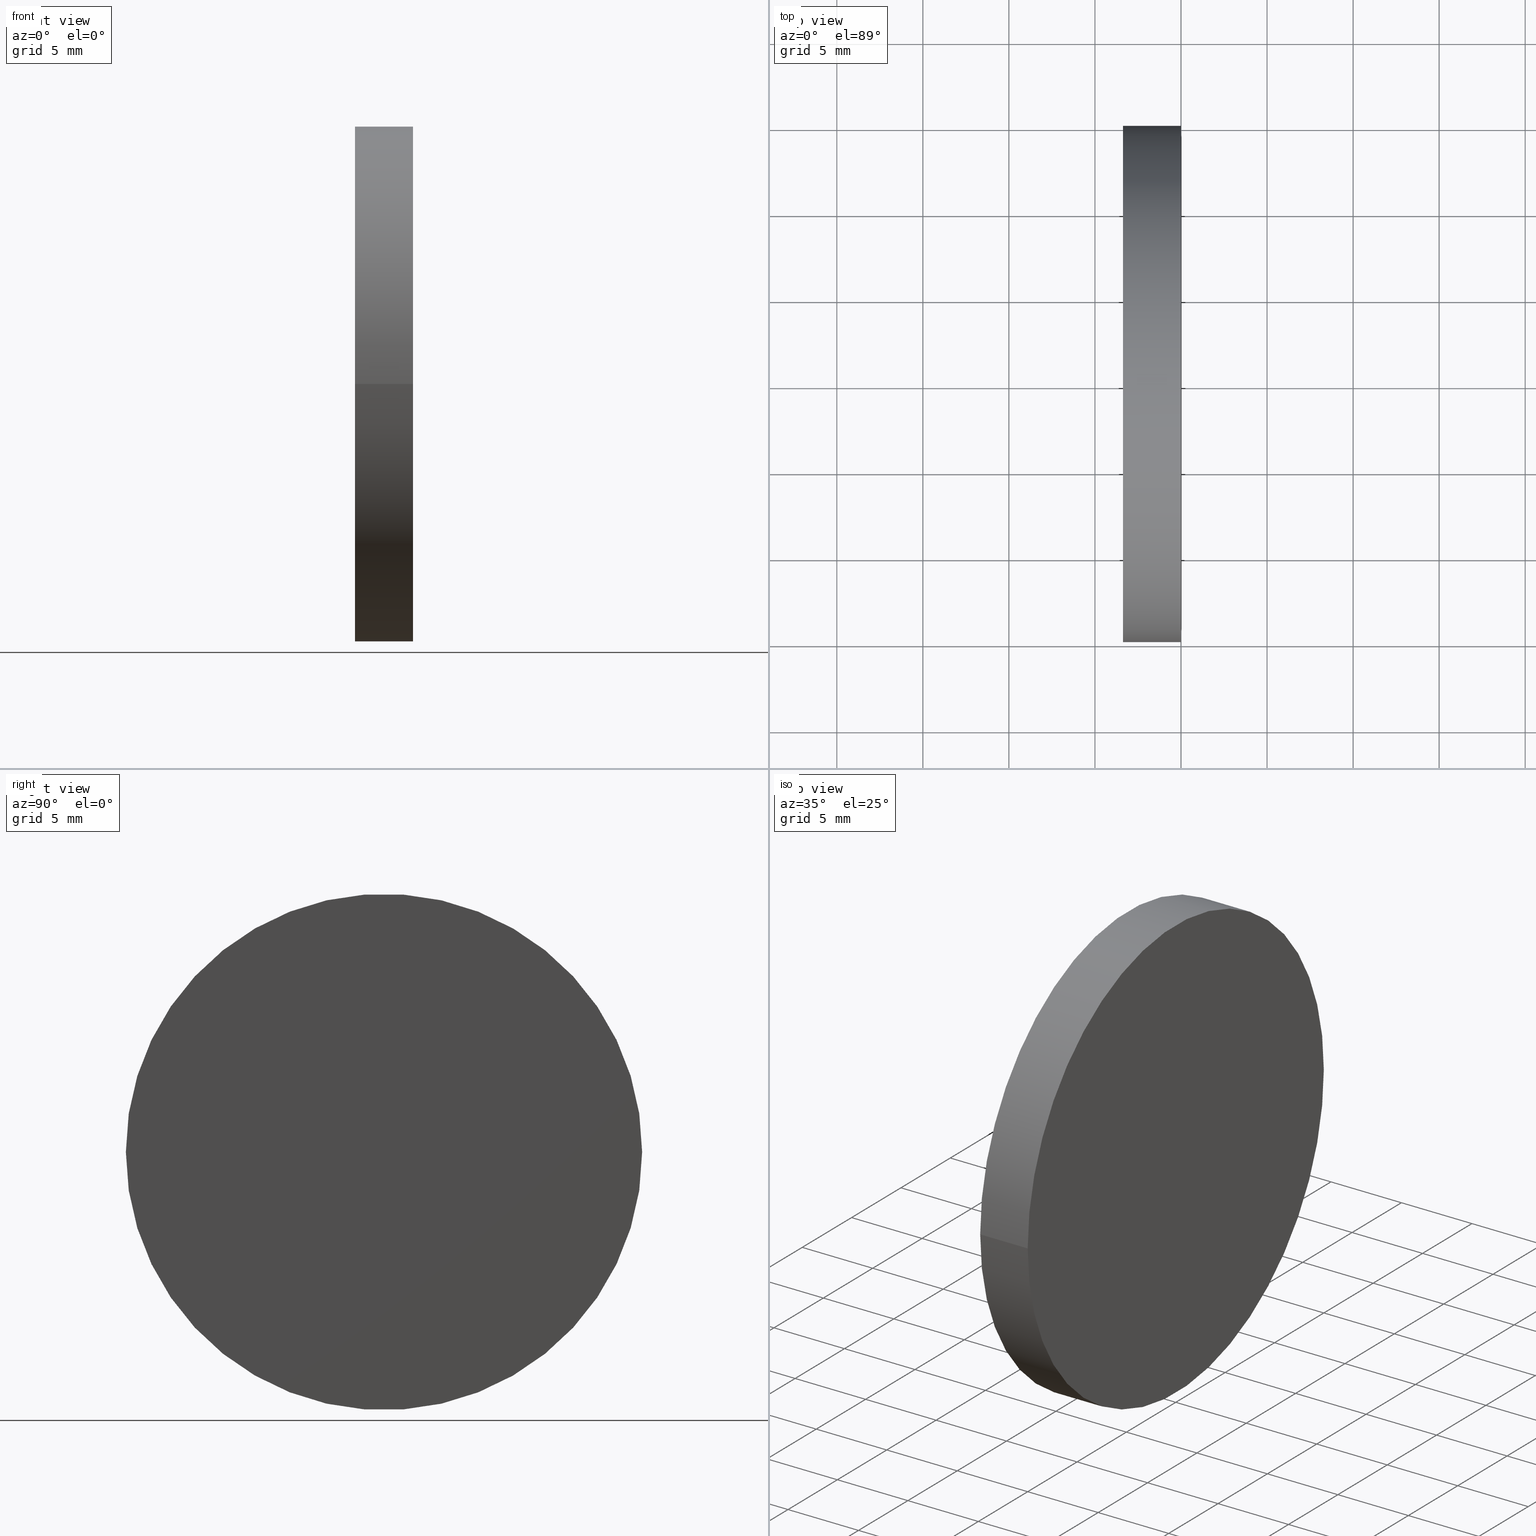
[diagram: canonical four-view strip — front | top / right | iso, engineering-drawing reading convention]
A machine part, canonical four-view strip (front | top / right | iso — engineering-drawing reading convention). The complete STEP part file that produces these views, byte-faithful:
ISO-10303-21;
HEADER;
FILE_DESCRIPTION (( 'STEP AP203' ),
    '1' );
FILE_NAME ('120361.STEP',
    '2024-05-10T07:05:22',
    ( '' ),
    ( '' ),
    'SwSTEP 2.0',
    'SolidWorks 2020',
    '' );
FILE_SCHEMA (( 'CONFIG_CONTROL_DESIGN' ));
ENDSEC;

DATA;
#1 = ORGANIZATION ( 'δָ��', 'δָ��', '' ) ;
#2 = AXIS2_PLACEMENT_3D ( 'NONE', #94, #125, #138 ) ;
#3 = DIRECTION ( 'NONE',  ( 1.000000000000000000, 0.000000000000000000, 0.000000000000000000 ) ) ;
#4 = DIRECTION ( 'NONE',  ( 1.000000000000000000, 1.224646799147353454E-16, -0.000000000000000000 ) ) ;
#5 = PERSON_AND_ORGANIZATION_ROLE ( 'design_owner' ) ;
#6 = PERSON_AND_ORGANIZATION ( #105, #1 ) ;
#7 = LINE ( 'NONE', #197, #59 ) ;
#8 = CC_DESIGN_PERSON_AND_ORGANIZATION_ASSIGNMENT ( #37, #162, ( #61 ) ) ;
#9 = VERTEX_POINT ( 'NONE', #15 ) ;
#10 = ADVANCED_FACE ( 'NONE', ( #106 ), #145, .F. ) ;
#11 = VERTEX_POINT ( 'NONE', #135 ) ;
#12 = TOROIDAL_SURFACE ( 'NONE', #180, 0.02931019276954938135, 129.2400000000000091 ) ;
#13 = DIRECTION ( 'NONE',  ( -1.000000000000000000, 0.000000000000000000, 0.000000000000000000 ) ) ;
#14 = CARTESIAN_POINT ( 'NONE',  ( -131.7399966763873351, -1.613428357929991286E-14, 0.000000000000000000 ) ) ;
#15 = CARTESIAN_POINT ( 'NONE',  ( -3.370000000000006768, 14.99999999999998579, 0.000000000000000000 ) ) ;
#16 = LINE ( 'NONE', #152, #51 ) ;
#17 = COORDINATED_UNIVERSAL_TIME_OFFSET ( 8, 0, .AHEAD. ) ;
#18 = ADVANCED_BREP_SHAPE_REPRESENTATION ( '120361', ( #194, #107 ), #99 ) ;
#19 = APPROVAL ( #149, 'δָ��' ) ;
#20 = CARTESIAN_POINT ( 'NONE',  ( 0.000000000000000000, 0.000000000000000000, 0.000000000000000000 ) ) ;
#21 = CARTESIAN_POINT ( 'NONE',  ( -3.369999999999999218, -4.127059713126580291E-16, 0.000000000000000000 ) ) ;
#22 = AXIS2_PLACEMENT_3D ( 'NONE', #110, #114, #184 ) ;
#23 = LOCAL_TIME ( 15, 5, 22.00000000000000000, #17 ) ;
#24 = ORIENTED_EDGE ( 'NONE', *, *, #68, .T. ) ;
#25 = APPROVAL_ROLE ( '' ) ;
#26 = DATE_AND_TIME ( #46, #56 ) ;
#27 = CIRCLE ( 'NONE', #176, 129.2400000000000091 ) ;
#28 = ORIENTED_EDGE ( 'NONE', *, *, #147, .F. ) ;
#29 = UNCERTAINTY_MEASURE_WITH_UNIT (LENGTH_MEASURE( 1.000000000000000082E-05 ), #141, 'distance_accuracy_value', 'NONE');
#30 = FACE_OUTER_BOUND ( 'NONE', #86, .T. ) ;
#31 = EDGE_CURVE ( 'NONE', #9, #11, #163, .T. ) ;
#32 = DIRECTION ( 'NONE',  ( -1.224646799147353454E-16, 1.000000000000000000, 0.000000000000000000 ) ) ;
#33 = CARTESIAN_POINT ( 'NONE',  ( 8.203927630400290314E-16, 1.004691371300624697E-31, 0.000000000000000000 ) ) ;
#34 = APPLICATION_PROTOCOL_DEFINITION ( 'international standard', 'config_control_design', 1994, #95 ) ;
#35 = DATE_AND_TIME ( #158, #173 ) ;
#36 = DIRECTION ( 'NONE',  ( 1.000000000000000000, 1.224646799147353454E-16, -0.000000000000000000 ) ) ;
#37 = PERSON_AND_ORGANIZATION ( #105, #1 ) ;
#38 = ADVANCED_FACE ( 'NONE', ( #72 ), #172, .T. ) ;
#39 = APPROVAL_DATE_TIME ( #113, #119 ) ;
#40 = APPROVAL_ROLE ( '' ) ;
#41 = ADVANCED_FACE ( 'NONE', ( #30 ), #137, .T. ) ;
#42 = AXIS2_PLACEMENT_3D ( 'NONE', #21, #96, #82 ) ;
#43 = APPROVAL_PERSON_ORGANIZATION ( #120, #183, #40 ) ;
#44 = APPROVAL_PERSON_ORGANIZATION ( #83, #119, #25 ) ;
#45 = PERSON_AND_ORGANIZATION ( #105, #1 ) ;
#46 = CALENDAR_DATE ( 2024, 10, 5 ) ;
#47 = CARTESIAN_POINT ( 'NONE',  ( 2.657362961761059113E-15, -15.00000000000000000, 1.836970198721029589E-15 ) ) ;
#48 = PERSON_AND_ORGANIZATION_ROLE ( 'classification_officer' ) ;
#49 = APPROVAL_STATUS ( 'not_yet_approved' ) ;
#50 =( NAMED_UNIT ( * ) SI_UNIT ( $, .STERADIAN. ) SOLID_ANGLE_UNIT ( ) );
#51 = VECTOR ( 'NONE', #123, 1000.000000000000000 ) ;
#52 = DIRECTION ( 'NONE',  ( 0.000000000000000000, -1.000000000000000000, 1.224646799147353454E-16 ) ) ;
#53 = PERSON_AND_ORGANIZATION ( #105, #1 ) ;
#54 = EDGE_CURVE ( 'NONE', #9, #70, #156, .T. ) ;
#55 = ORIENTED_EDGE ( 'NONE', *, *, #54, .T. ) ;
#56 = LOCAL_TIME ( 15, 5, 22.00000000000000000, #165 ) ;
#57 = EDGE_LOOP ( 'NONE', ( #84, #166 ) ) ;
#58 = AXIS2_PLACEMENT_3D ( 'NONE', #33, #4, #161 ) ;
#59 = VECTOR ( 'NONE', #36, 1000.000000000000000 ) ;
#60 = CARTESIAN_POINT ( 'NONE',  ( -1.426773817201015418E-15, 15.00000000000000000, 0.000000000000000000 ) ) ;
#61 = PRODUCT_DEFINITION_FORMATION_WITH_SPECIFIED_SOURCE ( '�κ�', '', #187, .NOT_KNOWN. ) ;
#62 = CARTESIAN_POINT ( 'NONE',  ( -131.7399966763873351, -1.613428357929991286E-14, 0.000000000000000000 ) ) ;
#63 = FACE_OUTER_BOUND ( 'NONE', #148, .T. ) ;
#64 = DATE_AND_TIME ( #80, #23 ) ;
#65 = ORIENTED_EDGE ( 'NONE', *, *, #31, .T. ) ;
#66 = DATE_TIME_ROLE ( 'classification_date' ) ;
#67 = ORIENTED_EDGE ( 'NONE', *, *, #31, .F. ) ;
#68 = EDGE_CURVE ( 'NONE', #70, #90, #7, .T. ) ;
#69 = ORIENTED_EDGE ( 'NONE', *, *, #170, .F. ) ;
#70 = VERTEX_POINT ( 'NONE', #108 ) ;
#71 = CC_DESIGN_APPROVAL ( #183, ( #200 ) ) ;
#72 = FACE_OUTER_BOUND ( 'NONE', #57, .T. ) ;
#73 = CARTESIAN_POINT ( 'NONE',  ( -131.7399966763873351, 0.02931019276953324842, 0.000000000000000000 ) ) ;
#74 = DATE_AND_TIME ( #175, #199 ) ;
#75 = DIRECTION ( 'NONE',  ( -0.000000000000000000, 0.000000000000000000, -1.000000000000000000 ) ) ;
#76 =( NAMED_UNIT ( * ) PLANE_ANGLE_UNIT ( ) SI_UNIT ( $, .RADIAN. ) );
#77 = ADVANCED_FACE ( 'NONE', ( #98 ), #12, .F. ) ;
#78 = DIRECTION ( 'NONE',  ( -1.156482317317871478E-16, 1.000000000000000000, 0.000000000000000000 ) ) ;
#79 = CC_DESIGN_APPROVAL ( #19, ( #61 ) ) ;
#80 = CALENDAR_DATE ( 2024, 10, 5 ) ;
#81 = ADVANCED_FACE ( 'NONE', ( #63 ), #193, .T. ) ;
#82 = DIRECTION ( 'NONE',  ( -1.156482317317871478E-16, 1.000000000000000000, 0.000000000000000000 ) ) ;
#83 = PERSON_AND_ORGANIZATION ( #105, #1 ) ;
#84 = ORIENTED_EDGE ( 'NONE', *, *, #167, .T. ) ;
#85 = CC_DESIGN_PERSON_AND_ORGANIZATION_ASSIGNMENT ( #6, #48, ( #130 ) ) ;
#86 = EDGE_LOOP ( 'NONE', ( #169, #144, #87, #103 ) ) ;
#87 = ORIENTED_EDGE ( 'NONE', *, *, #192, .T. ) ;
#88 = PRODUCT_RELATED_PRODUCT_CATEGORY ( 'detail', '', ( #187 ) ) ;
#89 = CARTESIAN_POINT ( 'NONE',  ( 0.000000000000000000, 0.000000000000000000, 0.000000000000000000 ) ) ;
#90 = VERTEX_POINT ( 'NONE', #47 ) ;
#91 = COORDINATED_UNIVERSAL_TIME_OFFSET ( 8, 0, .AHEAD. ) ;
#92 = CC_DESIGN_DATE_AND_TIME_ASSIGNMENT ( #74, #93, ( #200 ) ) ;
#93 = DATE_TIME_ROLE ( 'creation_date' ) ;
#94 = CARTESIAN_POINT ( 'NONE',  ( 0.000000000000000000, 0.000000000000000000, 0.000000000000000000 ) ) ;
#95 = APPLICATION_CONTEXT ( 'configuration controlled 3d designs of mechanical parts and assemblies' ) ;
#96 = DIRECTION ( 'NONE',  ( 1.000000000000000000, 1.224646799147353454E-16, -0.000000000000000000 ) ) ;
#97 = SECURITY_CLASSIFICATION_LEVEL ( 'unclassified' ) ;
#98 = FACE_OUTER_BOUND ( 'NONE', #128, .T. ) ;
#99 =( GEOMETRIC_REPRESENTATION_CONTEXT ( 3 ) GLOBAL_UNCERTAINTY_ASSIGNED_CONTEXT ( ( #29 ) ) GLOBAL_UNIT_ASSIGNED_CONTEXT ( ( #141, #76, #50 ) ) REPRESENTATION_CONTEXT ( 'NONE', 'WORKASPACE' ) );
#100 = CC_DESIGN_SECURITY_CLASSIFICATION ( #130, ( #61 ) ) ;
#101 = ORIENTED_EDGE ( 'NONE', *, *, #192, .F. ) ;
#102 = ORIENTED_EDGE ( 'NONE', *, *, #54, .F. ) ;
#103 = ORIENTED_EDGE ( 'NONE', *, *, #116, .F. ) ;
#104 = CC_DESIGN_PERSON_AND_ORGANIZATION_ASSIGNMENT ( #109, #189, ( #200 ) ) ;
#105 = PERSON ( 'δָ��', 'δָ��', 'δָ��', ('δָ��'), ('δָ��'), ('δָ��') ) ;
#106 = FACE_OUTER_BOUND ( 'NONE', #186, .T. ) ;
#107 = AXIS2_PLACEMENT_3D ( 'NONE', #20, #177, #3 ) ;
#108 = CARTESIAN_POINT ( 'NONE',  ( -3.370000000000004992, -14.99999999999998579, 1.836970198721028011E-15 ) ) ;
#109 = PERSON_AND_ORGANIZATION ( #105, #1 ) ;
#110 = CARTESIAN_POINT ( 'NONE',  ( 8.203927630400290314E-16, 1.004691371300624697E-31, 0.000000000000000000 ) ) ;
#111 = CIRCLE ( 'NONE', #58, 15.00000000000000000 ) ;
#112 = CARTESIAN_POINT ( 'NONE',  ( -3.369999999999999218, -4.127059713126580291E-16, 0.000000000000000000 ) ) ;
#113 = DATE_AND_TIME ( #124, #164 ) ;
#114 = DIRECTION ( 'NONE',  ( 1.000000000000000000, 1.224646799147353454E-16, -0.000000000000000000 ) ) ;
#115 = PRODUCT_DEFINITION_SHAPE ( 'NONE', 'NONE',  #200 ) ;
#116 = EDGE_CURVE ( 'NONE', #90, #142, #111, .T. ) ;
#117 = DIRECTION ( 'NONE',  ( 1.000000000000000000, 1.224646799147353454E-16, -0.000000000000000000 ) ) ;
#118 = DIRECTION ( 'NONE',  ( -1.224646799147353207E-16, 1.000000000000000000, 0.000000000000000000 ) ) ;
#119 = APPROVAL ( #155, 'δָ��' ) ;
#120 = PERSON_AND_ORGANIZATION ( #105, #1 ) ;
#121 = COORDINATED_UNIVERSAL_TIME_OFFSET ( 8, 0, .AHEAD. ) ;
#122 = APPLICATION_PROTOCOL_DEFINITION ( 'international standard', 'config_control_design', 1994, #198 ) ;
#123 = DIRECTION ( 'NONE',  ( 1.000000000000000000, 1.224646799147353454E-16, -0.000000000000000000 ) ) ;
#124 = CALENDAR_DATE ( 2024, 10, 5 ) ;
#125 = DIRECTION ( 'NONE',  ( 1.000000000000000000, 1.224646799147353454E-16, -0.000000000000000000 ) ) ;
#126 = DIRECTION ( 'NONE',  ( 1.000000000000000000, 1.224646799147353454E-16, -0.000000000000000000 ) ) ;
#127 = CC_DESIGN_PERSON_AND_ORGANIZATION_ASSIGNMENT ( #53, #179, ( #61 ) ) ;
#128 = EDGE_LOOP ( 'NONE', ( #28, #102, #65 ) ) ;
#129 = ORIENTED_EDGE ( 'NONE', *, *, #167, .F. ) ;
#130 = SECURITY_CLASSIFICATION ( '', '', #97 ) ;
#131 = PERSON_AND_ORGANIZATION ( #105, #1 ) ;
#132 = ORIENTED_EDGE ( 'NONE', *, *, #147, .T. ) ;
#133 = CIRCLE ( 'NONE', #42, 15.00000000000000000 ) ;
#134 = AXIS2_PLACEMENT_3D ( 'NONE', #89, #146, #118 ) ;
#135 = CARTESIAN_POINT ( 'NONE',  ( -2.500000000000000000, -3.061616997868383634E-16, 0.000000000000000000 ) ) ;
#136 = CC_DESIGN_DATE_AND_TIME_ASSIGNMENT ( #64, #66, ( #130 ) ) ;
#137 = CYLINDRICAL_SURFACE ( 'NONE', #134, 15.00000000000000000 ) ;
#138 = DIRECTION ( 'NONE',  ( -1.224646799147353207E-16, 1.000000000000000000, 0.000000000000000000 ) ) ;
#139 = CARTESIAN_POINT ( 'NONE',  ( -131.7399966763873351, -0.02931019276956551775, 3.589463375762054284E-18 ) ) ;
#140 = AXIS2_PLACEMENT_3D ( 'NONE', #14, #188, #32 ) ;
#141 =( LENGTH_UNIT ( ) NAMED_UNIT ( * ) SI_UNIT ( .MILLI., .METRE. ) );
#142 = VERTEX_POINT ( 'NONE', #157 ) ;
#143 = AXIS2_PLACEMENT_3D ( 'NONE', #73, #75, #13 ) ;
#144 = ORIENTED_EDGE ( 'NONE', *, *, #170, .T. ) ;
#145 = TOROIDAL_SURFACE ( 'NONE', #140, 0.02931019276954938135, 129.2400000000000091 ) ;
#146 = DIRECTION ( 'NONE',  ( 1.000000000000000000, 1.224646799147353454E-16, -0.000000000000000000 ) ) ;
#147 = EDGE_CURVE ( 'NONE', #70, #11, #27, .T. ) ;
#148 = EDGE_LOOP ( 'NONE', ( #55, #24, #129, #101 ) ) ;
#149 = APPROVAL_STATUS ( 'not_yet_approved' ) ;
#150 = CLOSED_SHELL ( 'NONE', ( #81, #10, #77, #41, #38 ) ) ;
#151 = APPROVAL_DATE_TIME ( #26, #183 ) ;
#152 = CARTESIAN_POINT ( 'NONE',  ( -1.836970198721029983E-15, 15.00000000000000000, 0.000000000000000000 ) ) ;
#153 = APPROVAL_ROLE ( '' ) ;
#154 = MECHANICAL_CONTEXT ( 'NONE', #95, 'mechanical' ) ;
#155 = APPROVAL_STATUS ( 'not_yet_approved' ) ;
#156 = CIRCLE ( 'NONE', #168, 15.00000000000000000 ) ;
#157 = CARTESIAN_POINT ( 'NONE',  ( -1.016577435681000853E-15, 15.00000000000000000, 0.000000000000000000 ) ) ;
#158 = CALENDAR_DATE ( 2024, 10, 5 ) ;
#159 = SHAPE_DEFINITION_REPRESENTATION ( #115, #18 ) ;
#160 = CC_DESIGN_PERSON_AND_ORGANIZATION_ASSIGNMENT ( #131, #5, ( #187 ) ) ;
#161 = DIRECTION ( 'NONE',  ( -1.224646799147353207E-16, 1.000000000000000000, 0.000000000000000000 ) ) ;
#162 = PERSON_AND_ORGANIZATION_ROLE ( 'design_supplier' ) ;
#163 = CIRCLE ( 'NONE', #143, 129.2400000000000375 ) ;
#164 = LOCAL_TIME ( 15, 5, 22.00000000000000000, #182 ) ;
#165 = COORDINATED_UNIVERSAL_TIME_OFFSET ( 8, 0, .AHEAD. ) ;
#166 = ORIENTED_EDGE ( 'NONE', *, *, #116, .T. ) ;
#167 = EDGE_CURVE ( 'NONE', #142, #90, #201, .T. ) ;
#168 = AXIS2_PLACEMENT_3D ( 'NONE', #112, #126, #78 ) ;
#169 = ORIENTED_EDGE ( 'NONE', *, *, #68, .F. ) ;
#170 = EDGE_CURVE ( 'NONE', #70, #9, #133, .T. ) ;
#171 = AXIS2_PLACEMENT_3D ( 'NONE', #60, #117, #174 ) ;
#172 = PLANE ( 'NONE',  #171 ) ;
#173 = LOCAL_TIME ( 15, 5, 22.00000000000000000, #121 ) ;
#174 = DIRECTION ( 'NONE',  ( -1.224646799147353454E-16, 1.000000000000000000, 0.000000000000000000 ) ) ;
#175 = CALENDAR_DATE ( 2024, 10, 5 ) ;
#176 = AXIS2_PLACEMENT_3D ( 'NONE', #139, #181, #52 ) ;
#177 = DIRECTION ( 'NONE',  ( 0.000000000000000000, 0.000000000000000000, 1.000000000000000000 ) ) ;
#178 = DIRECTION ( 'NONE',  ( -1.224646799147353454E-16, 1.000000000000000000, 0.000000000000000000 ) ) ;
#179 = PERSON_AND_ORGANIZATION_ROLE ( 'creator' ) ;
#180 = AXIS2_PLACEMENT_3D ( 'NONE', #62, #196, #178 ) ;
#181 = DIRECTION ( 'NONE',  ( -1.499759782661857882E-32, 1.224646799147353207E-16, 1.000000000000000000 ) ) ;
#182 = COORDINATED_UNIVERSAL_TIME_OFFSET ( 8, 0, .AHEAD. ) ;
#183 = APPROVAL ( #49, 'δָ��' ) ;
#184 = DIRECTION ( 'NONE',  ( -1.224646799147353207E-16, 1.000000000000000000, 0.000000000000000000 ) ) ;
#185 = DESIGN_CONTEXT ( 'detailed design', #198, 'design' ) ;
#186 = EDGE_LOOP ( 'NONE', ( #69, #132, #67 ) ) ;
#187 = PRODUCT ( '120361', '120361', '', ( #154 ) ) ;
#188 = DIRECTION ( 'NONE',  ( 1.000000000000000000, 1.224646799147353454E-16, -0.000000000000000000 ) ) ;
#189 = PERSON_AND_ORGANIZATION_ROLE ( 'creator' ) ;
#190 = APPROVAL_PERSON_ORGANIZATION ( #45, #19, #153 ) ;
#191 = CC_DESIGN_APPROVAL ( #119, ( #130 ) ) ;
#192 = EDGE_CURVE ( 'NONE', #9, #142, #16, .T. ) ;
#193 = CYLINDRICAL_SURFACE ( 'NONE', #2, 15.00000000000000000 ) ;
#194 = MANIFOLD_SOLID_BREP ( '��ת1', #150 ) ;
#195 = APPROVAL_DATE_TIME ( #35, #19 ) ;
#196 = DIRECTION ( 'NONE',  ( 1.000000000000000000, 1.224646799147353454E-16, -0.000000000000000000 ) ) ;
#197 = CARTESIAN_POINT ( 'NONE',  ( 1.836970198721029983E-15, -15.00000000000000000, 1.836970198721029589E-15 ) ) ;
#198 = APPLICATION_CONTEXT ( 'configuration controlled 3d designs of mechanical parts and assemblies' ) ;
#199 = LOCAL_TIME ( 15, 5, 22.00000000000000000, #91 ) ;
#200 = PRODUCT_DEFINITION ( 'δ֪', '', #61, #185 ) ;
#201 = CIRCLE ( 'NONE', #22, 15.00000000000000000 ) ;
ENDSEC;
END-ISO-10303-21;
